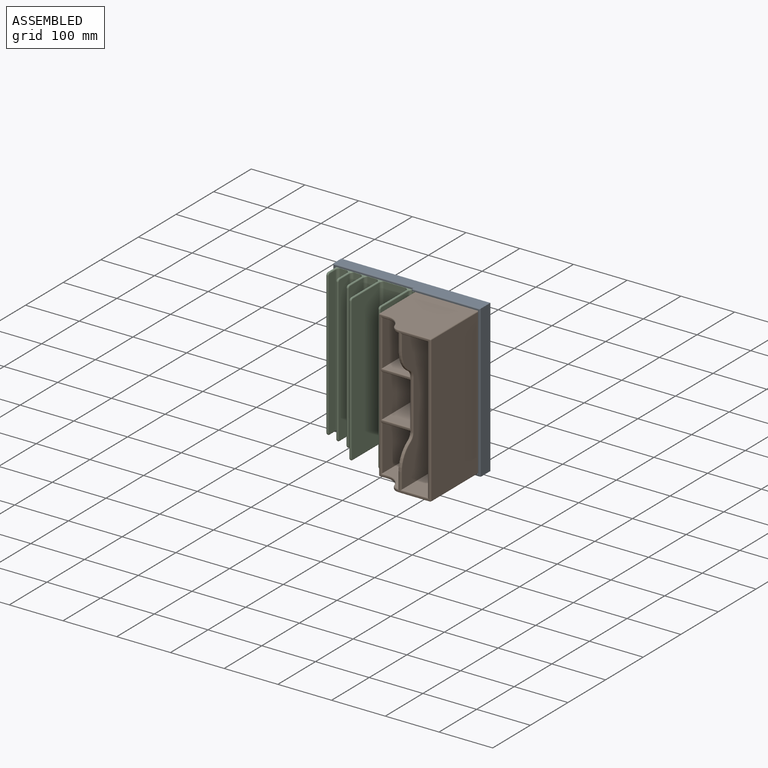
[diagram: assembled view]
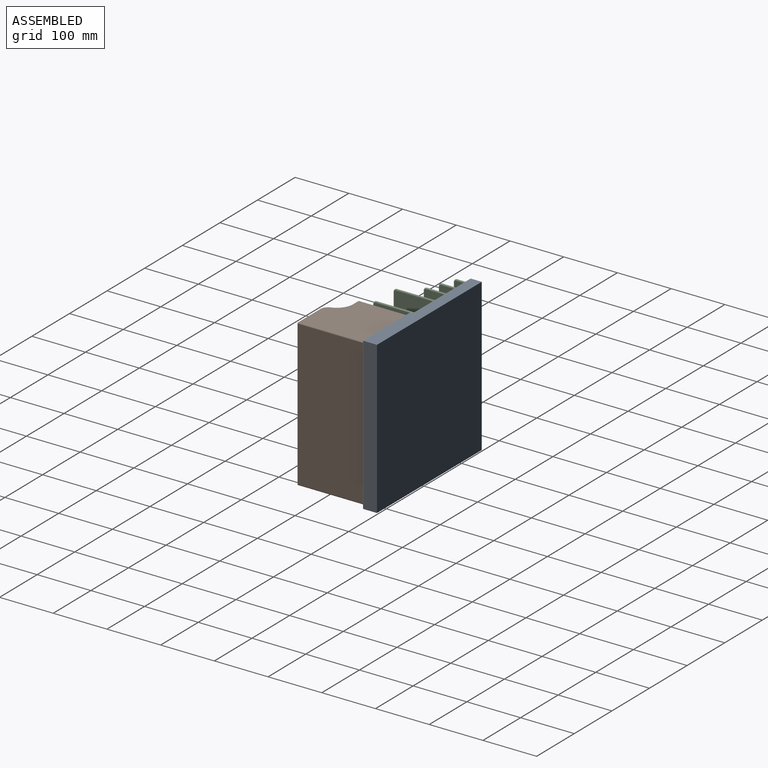
[diagram: assembled view, second angle]
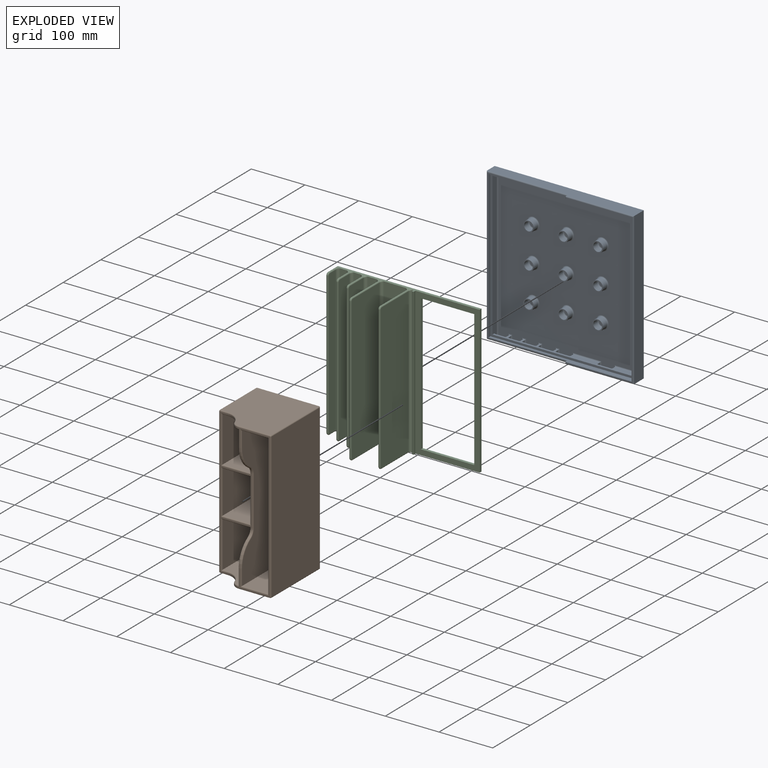
[diagram: exploded view]
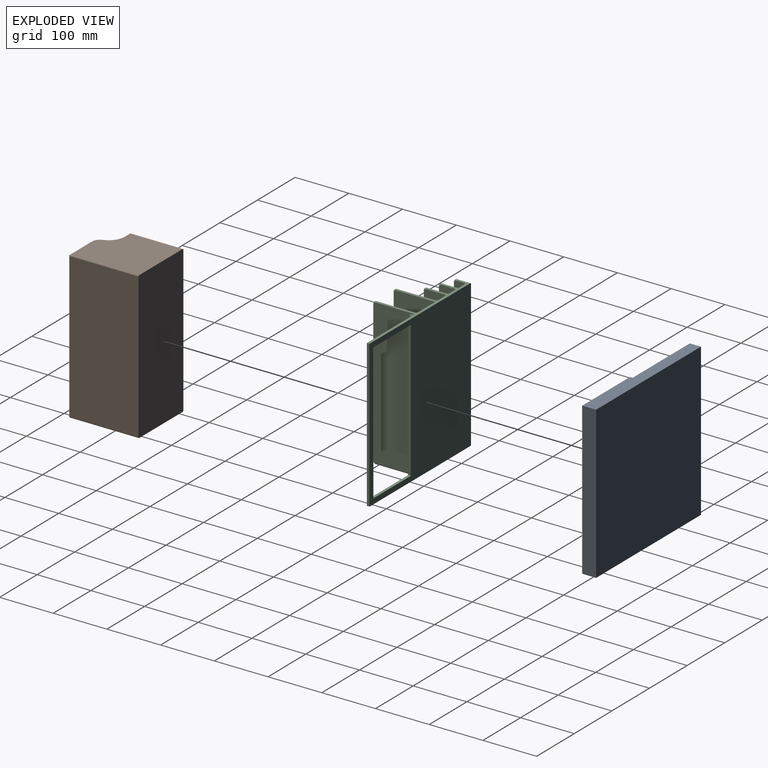
[diagram: exploded view, second angle]
ASSEMBLY  parts=3 mates=2
PART A: 134 faces, bbox 283x27x278 mm
  f0: plane 262x11mm, normal (-1,0,0), area 1815.4mm2, adj f7,f14,f15,f19,f20,f21,f22,f23
  f1: plane 279x148mm, normal (0,-1,0), area 1142mm2, adj f8,f9,f11,f16,f17,f41,f44,f46
  f2: plane 278x25mm, normal (1,0,0), area 4826mm2, adj f3,f5,f6,f12,f14,f19,f20,f21
  f3: plane 283x25mm, normal (0,0,1), area 7075mm2, adj f2,f4,f6,f40
  f4: plane 278x25mm, normal (-1,0,0), area 6190mm2, adj f3,f5,f6,f38,f39,f41
  f5: plane 283x20mm, normal (0,0,-1), area 5660mm2, adj f2,f4,f6,f44
  f6: plane 283x278mm, normal (0,1,0), area 78674mm2, adj f2,f3,f4,f5
  f7: plane 275x270mm, normal (0,-1,0), area 4296mm2, adj f0,f8,f9,f10,f11,f13,f14,f15
  f8: plane 275x5mm, normal (0,0,1), area 1375mm2, adj f1,f7,f9,f11
  f9: plane 270x10mm, normal (-1,0,0), area 1969.1mm2, adj f1,f7,f8,f10,f16,f18,f42
  f10: plane 275x10mm, normal (0,0,-1), area 2750mm2, adj f7,f9,f11,f18
  f11: plane 270x10mm, normal (1,0,0), area 1969.1mm2, adj f1,f7,f8,f10,f17,f18,f36
  f12: plane 273x258mm, normal (0,-1,0), area 65081mm2, adj f2,f48,f49,f50,f51,f52,f53,f54
  f13: plane 262x11mm, normal (1,0,0), area 2882mm2, adj f7,f14,f15,f64
  f14: plane 275x11mm, normal (0,0,1), area 2977mm2, adj f0,f2,f7,f13,f63,f79
  f15: plane 267x11mm, normal (0,0,-1), area 2937mm2, adj f0,f7,f13,f65
  f16: plane 3x2mm, normal (0,0,-1), area 6mm2, adj f1,f9,f42,f47
  f17: plane 3x2mm, normal (0,0,-1), area 6mm2, adj f1,f11,f36,f39
  f18: plane 279x124mm, normal (0,-1,0), area 1046mm2, adj f9,f10,f11,f36,f38,f40,f42,f43
  f19: plane 8x5mm, normal (0,0,-1), area 40mm2, adj f0,f2,f67,f68
  f20: plane 8x5mm, normal (0,0,1), area 40mm2, adj f0,f2,f60,f69
  f21: plane 24x8mm, normal (0,1,0), area 192mm2, adj f0,f2,f68,f69
  f22: plane 8x5mm, normal (0,0,-1), area 40mm2, adj f0,f2,f61,f70
  f23: plane 8x5mm, normal (0,0,1), area 40mm2, adj f0,f2,f57,f71
  f24: plane 24x8mm, normal (0,1,0), area 192mm2, adj f0,f2,f70,f71
  f25: plane 8x5mm, normal (0,0,-1), area 40mm2, adj f0,f2,f58,f72
  f26: plane 8x5mm, normal (0,0,1), area 40mm2, adj f0,f2,f54,f73
  f27: plane 24x8mm, normal (0,1,0), area 192mm2, adj f0,f2,f72,f73
  f28: plane 8x5mm, normal (0,0,-1), area 40mm2, adj f0,f2,f55,f74
  f29: plane 8x5mm, normal (0,0,1), area 40mm2, adj f0,f2,f51,f75
  f30: plane 21.95x8mm, normal (0,1,0), area 175.6mm2, adj f0,f2,f74,f75
  f31: plane 8x5mm, normal (0,0,-1), area 40mm2, adj f0,f2,f52,f76
  f32: plane 8x5mm, normal (0,0,1), area 40mm2, adj f0,f2,f48,f77
  f33: plane 17.95x8mm, normal (0,1,0), area 143.6mm2, adj f0,f2,f76,f77
  f34: plane 8x5mm, normal (0,0,-1), area 40mm2, adj f0,f2,f49,f78
  f35: plane 17.95x8mm, normal (0,1,0), area 143.6mm2, adj f0,f2,f78,f79
  f36: cylinder r=2mm len=2mm, axis (-1,0,0), area 6.3mm2, adj f11,f17,f18,f37
  f37: sphere r=2mm, area 6.3mm2, adj f36,f38,f39
  f38: cylinder r=2mm len=126mm, axis (0,0,-1), area 393.6mm2, adj f4,f18,f37,f40
  f39: cylinder r=2mm len=5mm, axis (0,-1,0), area 11.7mm2, adj f4,f17,f37,f41
  f40: cylinder r=2mm len=283mm, axis (-1,0,0), area 884.5mm2, adj f3,f18,f38,f43
  f41: cylinder r=2mm len=152mm, axis (0,0,-1), area 471.2mm2, adj f1,f4,f39,f44
  f42: cylinder r=2mm len=2mm, axis (-1,0,0), area 6.3mm2, adj f9,f16,f18,f45
  f43: cylinder r=2mm len=126mm, axis (0,0,1), area 393.6mm2, adj f2,f18,f40,f45
  f44: cylinder r=2mm len=283mm, axis (1,0,0), area 884.5mm2, adj f1,f5,f41,f46
  f45: sphere r=2mm, area 6.3mm2, adj f42,f43,f47
  f46: cylinder r=2mm len=152mm, axis (0,0,1), area 471.2mm2, adj f1,f2,f44,f47
  f47: cylinder r=2mm len=5mm, axis (0,1,0), area 11.7mm2, adj f2,f16,f45,f46
  f48: cylinder r=2mm len=10mm, axis (1,0,0), area 27.4mm2, adj f2,f12,f32,f50
  f49: cylinder r=2mm len=10mm, axis (-1,0,0), area 27.4mm2, adj f2,f12,f34,f50
  f50: cylinder r=2mm len=8mm, axis (0,0,-1), area 17.1mm2, adj f0,f12,f48,f49
  f51: cylinder r=2mm len=10mm, axis (1,0,0), area 27.4mm2, adj f2,f12,f29,f53
  f52: cylinder r=2mm len=10mm, axis (-1,0,0), area 27.4mm2, adj f2,f12,f31,f53
  f53: cylinder r=2mm len=8mm, axis (0,0,-1), area 17.1mm2, adj f0,f12,f51,f52
  f54: cylinder r=2mm len=10mm, axis (1,0,0), area 27.4mm2, adj f2,f12,f26,f56
  f55: cylinder r=2mm len=10mm, axis (-1,0,0), area 27.4mm2, adj f2,f12,f28,f56
  f56: cylinder r=2mm len=8mm, axis (0,0,-1), area 17.1mm2, adj f0,f12,f54,f55
  f57: cylinder r=2mm len=10mm, axis (1,0,0), area 27.4mm2, adj f2,f12,f23,f59
  f58: cylinder r=2mm len=10mm, axis (-1,0,0), area 27.4mm2, adj f2,f12,f25,f59
  f59: cylinder r=2mm len=8.15mm, axis (0,0,-1), area 17.6mm2, adj f0,f12,f57,f58
  f60: cylinder r=2mm len=10mm, axis (1,0,0), area 27.4mm2, adj f2,f12,f20,f62
  f61: cylinder r=2mm len=10mm, axis (-1,0,0), area 27.4mm2, adj f2,f12,f22,f62
  f62: cylinder r=2mm len=54mm, axis (0,0,-1), area 161.6mm2, adj f0,f12,f60,f61
  f63: cylinder r=2mm len=275mm, axis (-1,0,0), area 861.7mm2, adj f2,f12,f14,f64
  f64: cylinder r=2mm len=262mm, axis (0,0,1), area 818.5mm2, adj f12,f13,f63,f65
  f65: cylinder r=2mm len=267mm, axis (1,0,0), area 834.2mm2, adj f12,f15,f64,f66
  f66: cylinder r=2mm len=44mm, axis (0,0,-1), area 131.9mm2, adj f0,f12,f65,f67
  f67: cylinder r=2mm len=10mm, axis (-1,0,0), area 27.4mm2, adj f2,f12,f19,f66
  f68: cylinder r=2mm len=8mm, axis (1,0,0), area 25.1mm2, adj f0,f2,f19,f21
  f69: cylinder r=2mm len=8mm, axis (-1,0,0), area 25.1mm2, adj f0,f2,f20,f21
  f70: cylinder r=2mm len=8mm, axis (1,0,0), area 25.1mm2, adj f0,f2,f22,f24
  f71: cylinder r=2mm len=8mm, axis (-1,0,0), area 25.1mm2, adj f0,f2,f23,f24
  f72: cylinder r=2mm len=8mm, axis (1,0,0), area 25.1mm2, adj f0,f2,f25,f27
  f73: cylinder r=2mm len=8mm, axis (-1,0,0), area 25.1mm2, adj f0,f2,f26,f27
  f74: cylinder r=2mm len=8mm, axis (1,0,0), area 25.1mm2, adj f0,f2,f28,f30
  f75: cylinder r=2mm len=8mm, axis (-1,0,0), area 25.1mm2, adj f0,f2,f29,f30
  f76: cylinder r=2mm len=8mm, axis (1,0,0), area 25.1mm2, adj f0,f2,f31,f33
  f77: cylinder r=2mm len=8mm, axis (-1,0,0), area 25.1mm2, adj f0,f2,f32,f33
  f78: cylinder r=2mm len=8mm, axis (1,0,0), area 25.1mm2, adj f0,f2,f34,f35
  f79: cylinder r=2mm len=8mm, axis (1,0,0), area 25.1mm2, adj f0,f2,f14,f35
  f80: cylinder r=8mm len=16mm, axis (0,1,0), area 527.8mm2, adj f82,f133
  f81: cylinder r=10mm len=20mm, axis (0,1,0), area 659.7mm2, adj f82,f124
  f82: plane 20x20mm, normal (0,-1,0), area 113.1mm2, adj f80,f81
  f83: plane 12x12mm, normal (0,-1,0), area 113.1mm2, adj f133
  f84: cylinder r=8mm len=16mm, axis (0,1,0), area 527.8mm2, adj f86,f132
  f85: cylinder r=10mm len=20mm, axis (0,1,0), area 659.7mm2, adj f86,f123
  f86: plane 20x20mm, normal (0,-1,0), area 113.1mm2, adj f84,f85
  f87: plane 12x12mm, normal (0,-1,0), area 113.1mm2, adj f132
  f88: cylinder r=8mm len=16mm, axis (0,1,0), area 527.8mm2, adj f90,f131
  f89: cylinder r=10mm len=20mm, axis (0,1,0), area 659.7mm2, adj f90,f122
  f90: plane 20x20mm, normal (0,-1,0), area 113.1mm2, adj f88,f89
  f91: plane 12x12mm, normal (0,-1,0), area 113.1mm2, adj f131
  f92: cylinder r=8mm len=16mm, axis (0,1,0), area 527.8mm2, adj f94,f130
  f93: cylinder r=10mm len=20mm, axis (0,1,0), area 659.7mm2, adj f94,f121
  f94: plane 20x20mm, normal (0,-1,0), area 113.1mm2, adj f92,f93
  f95: plane 12x12mm, normal (0,-1,0), area 113.1mm2, adj f130
  f96: cylinder r=8mm len=16mm, axis (0,1,0), area 527.8mm2, adj f98,f129
  f97: cylinder r=10mm len=20mm, axis (0,1,0), area 659.7mm2, adj f98,f120
  f98: plane 20x20mm, normal (0,-1,0), area 113.1mm2, adj f96,f97
  f99: plane 12x12mm, normal (0,-1,0), area 113.1mm2, adj f129
  f100: cylinder r=8mm len=16mm, axis (0,1,0), area 527.8mm2, adj f102,f128
  f101: cylinder r=10mm len=20mm, axis (0,1,0), area 659.7mm2, adj f102,f119
  f102: plane 20x20mm, normal (0,-1,0), area 113.1mm2, adj f100,f101
  f103: plane 12x12mm, normal (0,-1,0), area 113.1mm2, adj f128
  f104: cylinder r=8mm len=16mm, axis (0,1,0), area 527.8mm2, adj f106,f127
  f105: cylinder r=10mm len=20mm, axis (0,1,0), area 659.7mm2, adj f106,f118
  f106: plane 20x20mm, normal (0,-1,0), area 113.1mm2, adj f104,f105
  f107: plane 12x12mm, normal (0,-1,0), area 113.1mm2, adj f127
  f108: cylinder r=8mm len=16mm, axis (0,1,0), area 527.8mm2, adj f110,f126
  f109: cylinder r=10mm len=20mm, axis (0,1,0), area 659.7mm2, adj f110,f117
  f110: plane 20x20mm, normal (0,-1,0), area 113.1mm2, adj f108,f109
  f111: plane 12x12mm, normal (0,-1,0), area 113.1mm2, adj f126
  f112: cylinder r=8mm len=16mm, axis (0,1,0), area 527.8mm2, adj f114,f125
  f113: cylinder r=10mm len=20mm, axis (0,1,0), area 659.7mm2, adj f114,f116
  f114: plane 20x20mm, normal (0,-1,0), area 113.1mm2, adj f112,f113
  f115: plane 12x12mm, normal (0,-1,0), area 113.1mm2, adj f125
  f116: torus R=12mm, axis (0,1,0), area 211.7mm2, adj f12,f113
  f117: torus R=12mm, axis (0,1,0), area 211.7mm2, adj f12,f109
  f118: torus R=12mm, axis (0,1,0), area 211.7mm2, adj f12,f105
  f119: torus R=12mm, axis (0,1,0), area 211.7mm2, adj f12,f101
  f120: torus R=12mm, axis (0,1,0), area 211.7mm2, adj f12,f97
  f121: torus R=12mm, axis (0,1,0), area 211.7mm2, adj f12,f93
  f122: torus R=12mm, axis (0,1,0), area 211.7mm2, adj f12,f89
  f123: torus R=12mm, axis (0,1,0), area 211.7mm2, adj f12,f85
  f124: torus R=12mm, axis (0,1,0), area 211.7mm2, adj f12,f81
  f125: torus R=6mm, axis (0,1,0), area 143.6mm2, adj f112,f115
  f126: torus R=6mm, axis (0,1,0), area 143.6mm2, adj f108,f111
  f127: torus R=6mm, axis (0,1,0), area 143.6mm2, adj f104,f107
  f128: torus R=6mm, axis (0,1,0), area 143.6mm2, adj f100,f103
  f129: torus R=6mm, axis (0,1,0), area 143.6mm2, adj f96,f99
  f130: torus R=6mm, axis (0,1,0), area 143.6mm2, adj f92,f95
  f131: torus R=6mm, axis (0,1,0), area 143.6mm2, adj f88,f91
  f132: torus R=6mm, axis (0,1,0), area 143.6mm2, adj f84,f87
  f133: torus R=6mm, axis (0,1,0), area 143.6mm2, adj f80,f83
PART B: 87 faces, bbox 274x119x134.1 mm
  f0: plane 122x85mm, normal (0,-1,0), area 9680.6mm2, adj f12,f13,f25,f48,f50,f52
  f1: plane 270x60mm, normal (0,0,1), area 992.9mm2, adj f27,f28,f33,f34,f37,f39,f41,f43
  f2: plane 270x59mm, normal (0,0,1), area 894.4mm2, adj f29,f30,f31,f32,f38,f40,f52,f54
  f3: plane 122x85mm, normal (0,-1,0), area 9680.6mm2, adj f8,f9,f23,f40,f42,f44
  f4: plane 262x122mm, normal (0,1,0), area 27733.3mm2, adj f14,f16,f24,f73,f74,f76,f78,f80
  f5: plane 91x80mm, normal (0,-1,0), area 7280mm2, adj f10,f11,f26,f86
  f6: plane 128x115mm, normal (1,0,0), area 13516.9mm2, adj f22,f55,f56,f57,f58,f59,f60
  f7: plane 128x115mm, normal (-1,0,0), area 13516.9mm2, adj f22,f63,f66,f69,f70,f71,f72
  f8: plane 91x52mm, normal (1,0,0), area 4732mm2, adj f3,f19,f23,f41
  f9: plane 122x52mm, normal (-1,0,0), area 5264.9mm2, adj f3,f19,f23,f35,f36,f37
  f10: plane 91x52mm, normal (1,0,0), area 4732mm2, adj f5,f17,f26,f85
  f11: plane 91x52mm, normal (-1,0,0), area 4732mm2, adj f5,f17,f26,f84
  f12: plane 122x52mm, normal (1,0,0), area 5264.9mm2, adj f0,f18,f25,f49,f51,f53
  f13: plane 91x52mm, normal (-1,0,0), area 4732mm2, adj f0,f18,f25,f45
  f14: plane 122x49mm, normal (1,0,0), area 5978mm2, adj f4,f15,f24,f75
  f15: plane 262x122mm, normal (0,-1,0), area 31964mm2, adj f14,f16,f24,f77
  f16: plane 122x49mm, normal (-1,0,0), area 5978mm2, adj f4,f15,f24,f79
  f17: plane 91x80mm, normal (0,1,0), area 7280mm2, adj f10,f11,f26,f83
  f18: plane 91x85mm, normal (0,1,0), area 7735mm2, adj f12,f13,f25,f47
  f19: plane 91x85mm, normal (0,1,0), area 7735mm2, adj f8,f9,f23,f39
  f20: plane 270x128mm, normal (0,1,0), area 34560mm2, adj f22,f57,f63,f64
  f21: plane 270x97mm, normal (0,-1,0), area 26190mm2, adj f22,f60,f65,f66
  f22: plane 274x119mm, normal (0,0,-1), area 32602.6mm2, adj f6,f7,f20,f21,f57,f60,f63,f66
  f23: plane 85x52mm, normal (0,0,1), area 4420mm2, adj f3,f8,f9,f19
  f24: plane 262x49mm, normal (0,0,1), area 12838mm2, adj f4,f14,f15,f16
  f25: plane 85x52mm, normal (0,0,1), area 4420mm2, adj f0,f12,f13,f18
  f26: plane 80x52mm, normal (0,0,1), area 4160mm2, adj f5,f10,f11,f17
  f27: cylinder r=15mm len=12.78mm, axis (0,-1,0), area 30.6mm2, adj f1,f29,f44,f80
  f28: cylinder r=15mm len=12.78mm, axis (0,1,0), area 30.6mm2, adj f1,f30,f48,f76
  f29: cylinder r=50mm len=42.61mm, axis (0,-1,0), area 102mm2, adj f2,f27,f42,f82
  f30: cylinder r=50mm len=42.61mm, axis (0,1,0), area 102mm2, adj f2,f28,f50,f74
  f31: cylinder r=15mm len=14.26mm, axis (1,0,0), area 37.6mm2, adj f2,f33,f36,f55
  f32: cylinder r=15mm len=14.26mm, axis (1,0,0), area 37.6mm2, adj f2,f34,f53,f71
  f33: cylinder r=30mm len=28.51mm, axis (1,0,0), area 75.3mm2, adj f1,f31,f35,f56
  f34: cylinder r=30mm len=28.51mm, axis (1,0,0), area 75.3mm2, adj f1,f32,f51,f72
  f35: torus R=32mm, axis (1,0,0), area 121.1mm2, adj f9,f33,f36,f37
  f36: torus R=13mm, axis (1,0,0), area 56.2mm2, adj f9,f31,f35,f38
  f37: cylinder r=2mm len=11.23mm, axis (0,1,0), area 31.3mm2, adj f1,f9,f35,f39
  f38: cylinder r=2mm len=2mm, axis (0,-1,0), area 2.3mm2, adj f2,f36,f40
  f39: cylinder r=2mm len=89mm, axis (1,0,0), area 271.6mm2, adj f1,f19,f37,f41
  f40: cylinder r=2mm len=31.6mm, axis (-1,0,0), area 95.3mm2, adj f2,f3,f38,f42
  f41: cylinder r=2mm len=56mm, axis (0,-1,0), area 167.9mm2, adj f1,f8,f39,f43
  f42: torus R=48mm, axis (0,1,0), area 157.9mm2, adj f3,f29,f40,f44
  f43: cylinder r=2mm len=2mm, axis (-1,0,0), area 2.3mm2, adj f1,f41,f44
  f44: torus R=17mm, axis (0,1,0), area 50.4mm2, adj f3,f27,f42,f43
  f45: cylinder r=2mm len=56mm, axis (0,1,0), area 167.9mm2, adj f1,f13,f46,f47
  f46: cylinder r=2mm len=2mm, axis (-1,0,0), area 2.3mm2, adj f1,f45,f48
  f47: cylinder r=2mm len=89mm, axis (1,0,0), area 271.6mm2, adj f1,f18,f45,f49
  f48: torus R=17mm, axis (0,1,0), area 50.4mm2, adj f0,f28,f46,f50
  f49: cylinder r=2mm len=11.23mm, axis (0,-1,0), area 31.3mm2, adj f1,f12,f47,f51
  f50: torus R=48mm, axis (0,1,0), area 157.9mm2, adj f0,f30,f48,f52
  f51: torus R=32mm, axis (1,0,0), area 121.1mm2, adj f12,f34,f49,f53
  f52: cylinder r=2mm len=31.6mm, axis (-1,0,0), area 95.3mm2, adj f0,f2,f50,f54
  f53: torus R=13mm, axis (1,0,0), area 56.2mm2, adj f12,f32,f51,f54
  f54: cylinder r=2mm len=2mm, axis (0,-1,0), area 2.3mm2, adj f2,f52,f53
  f55: torus R=13mm, axis (1,0,0), area 56.2mm2, adj f6,f31,f56,f58
  f56: torus R=32mm, axis (1,0,0), area 121.1mm2, adj f6,f33,f55,f59
  f57: cylinder r=2mm len=128mm, axis (0,0,1), area 402.1mm2, adj f6,f20,f22,f61
  f58: cylinder r=2mm len=59mm, axis (0,-1,0), area 185.4mm2, adj f2,f6,f55,f61
  f59: cylinder r=2mm len=13.23mm, axis (0,1,0), area 41.6mm2, adj f1,f6,f56,f62
  f60: cylinder r=2mm len=97mm, axis (0,0,-1), area 304.7mm2, adj f6,f21,f22,f62
  f61: sphere r=2mm, area 6.3mm2, adj f57,f58,f64
  f62: sphere r=2mm, area 6.3mm2, adj f59,f60,f65
  f63: cylinder r=2mm len=128mm, axis (0,0,-1), area 402.1mm2, adj f7,f20,f22,f67
  f64: cylinder r=2mm len=270mm, axis (1,0,0), area 848.2mm2, adj f2,f20,f61,f67
  f65: cylinder r=2mm len=270mm, axis (-1,0,0), area 848.2mm2, adj f1,f21,f62,f68
  f66: cylinder r=2mm len=97mm, axis (0,0,1), area 304.7mm2, adj f7,f21,f22,f68
  f67: sphere r=2mm, area 6.3mm2, adj f63,f64,f69
  f68: sphere r=2mm, area 6.3mm2, adj f65,f66,f70
  f69: cylinder r=2mm len=59mm, axis (0,1,0), area 185.4mm2, adj f2,f7,f67,f71
  f70: cylinder r=2mm len=13.23mm, axis (0,-1,0), area 41.6mm2, adj f1,f7,f68,f72
  f71: torus R=13mm, axis (1,0,0), area 56.2mm2, adj f7,f32,f69,f72
  f72: torus R=32mm, axis (1,0,0), area 121.1mm2, adj f7,f34,f70,f71
  f73: cylinder r=2mm len=31.6mm, axis (1,0,0), area 95.3mm2, adj f2,f4,f74,f75
  f74: torus R=48mm, axis (0,1,0), area 157.9mm2, adj f4,f30,f73,f76
  f75: cylinder r=2mm len=53mm, axis (0,-1,0), area 158.5mm2, adj f2,f14,f73,f77
  f76: torus R=17mm, axis (0,1,0), area 50.4mm2, adj f4,f28,f74,f78
  f77: cylinder r=2mm len=266mm, axis (-1,0,0), area 827.7mm2, adj f2,f15,f75,f79
  f78: cylinder r=2mm len=92mm, axis (-1,0,0), area 289mm2, adj f1,f4,f76,f80
  f79: cylinder r=2mm len=53mm, axis (0,1,0), area 158.5mm2, adj f2,f16,f77,f81
  f80: torus R=17mm, axis (0,1,0), area 50.4mm2, adj f4,f27,f78,f82
  f81: cylinder r=2mm len=31.6mm, axis (1,0,0), area 95.3mm2, adj f2,f4,f79,f82
  f82: torus R=48mm, axis (0,1,0), area 157.9mm2, adj f4,f29,f80,f81
  f83: cylinder r=2mm len=84mm, axis (1,0,0), area 255.9mm2, adj f1,f17,f84,f85
  f84: cylinder r=2mm len=56mm, axis (0,1,0), area 167.9mm2, adj f1,f11,f83,f86
  f85: cylinder r=2mm len=56mm, axis (0,-1,0), area 167.9mm2, adj f1,f10,f83,f86
  f86: cylinder r=2mm len=84mm, axis (-1,0,0), area 255.9mm2, adj f1,f5,f84,f85
PART C: 112 faces, bbox 294.8x271x87.4 mm
  f0: plane 274x269mm, normal (0,0,1), area 48431.3mm2, adj f23,f24,f25,f26,f59,f63,f108,f109
  f1: plane 274x119.5mm, normal (0,0,-1), area 7470mm2, adj f23,f25,f26,f27,f108,f109,f110,f111
  f2: bspline ~3.72x3.09mm, area 1.9mm2, adj f23,f39,f102
  f3: bspline ~3.72x3.09mm, area 1.9mm2, adj f25,f43,f106
  f4: bspline ~3.72x3.09mm, area 1.9mm2, adj f23,f44,f97
  f5: bspline ~3.72x3.09mm, area 1.9mm2, adj f25,f48,f101
  f6: bspline ~3.72x3.09mm, area 1.9mm2, adj f23,f49,f92
  f7: bspline ~3.72x3.09mm, area 1.9mm2, adj f25,f53,f96
  f8: bspline ~3.72x3.09mm, area 1.9mm2, adj f23,f54,f87
  f9: bspline ~3.72x3.09mm, area 1.9mm2, adj f25,f58,f91
  f10: bspline ~3.72x3.09mm, area 1.9mm2, adj f23,f39,f80
  f11: bspline ~3.72x3.09mm, area 1.9mm2, adj f25,f43,f79
  f12: bspline ~3.72x3.09mm, area 1.9mm2, adj f23,f44,f75
  f13: bspline ~3.72x3.09mm, area 1.9mm2, adj f25,f48,f74
  f14: bspline ~3.72x3.09mm, area 1.9mm2, adj f23,f49,f70
  f15: bspline ~3.72x3.09mm, area 1.9mm2, adj f25,f53,f69
  f16: bspline ~3.72x3.09mm, area 1.9mm2, adj f23,f54,f65
  f17: bspline ~3.72x3.09mm, area 1.9mm2, adj f25,f58,f64
  f18: plane 274x16.53mm, normal (0,0,-1), area 4371.1mm2, adj f23,f25,f71,f72,f73,f98,f99,f100
  f19: plane 274x40.58mm, normal (0,0,-1), area 10960.8mm2, adj f23,f25,f66,f67,f68,f93,f94,f95
  f20: plane 274x12.53mm, normal (0,0,-1), area 3275.1mm2, adj f23,f25,f76,f77,f78,f103,f104,f105
  f21: plane 274x12.18mm, normal (0,0,-1), area 3179.2mm2, adj f23,f25,f81,f82,f83,f84,f85,f86
  f22: plane 274x1.29mm, normal (0,0,-1), area 274.4mm2, adj f23,f25,f28,f88,f89,f90
  f23: plane 268.98x11.98mm, normal (1,0,0), area 1364.6mm2, adj f0,f1,f2,f4,f6,f8,f10,f12
  f24: plane 270x28mm, normal (0,1,0), area 7556.1mm2, adj f0,f59,f60,f61,f62,f63
  f25: plane 268.98x11.98mm, normal (-1,0,0), area 1364.6mm2, adj f0,f1,f3,f5,f7,f9,f11,f13
  f26: plane 274x5mm, normal (0,-1,0), area 1370mm2, adj f0,f1,f23,f25
  f27: plane 274x5mm, normal (0,-1,0), area 1370mm2, adj f1,f23,f25,f29
  f28: plane 274x3mm, normal (0,1,0), area 822mm2, adj f22,f23,f25,f107
  f29: plane 274x2mm, normal (0,0,-1), area 548mm2, adj f23,f25,f27,f107
  f30: plane 270x28mm, normal (0,1,0), area 7556.1mm2, adj f39,f40,f41,f42,f43,f83
  f31: plane 270x28mm, normal (0,-1,0), area 7556.1mm2, adj f39,f40,f41,f42,f43,f104
  f32: plane 270x38mm, normal (0,1,0), area 10256.1mm2, adj f44,f45,f46,f47,f48,f78
  f33: plane 270x38mm, normal (0,-1,0), area 10256.1mm2, adj f44,f45,f46,f47,f48,f99
  f34: plane 270x73mm, normal (0,1,0), area 19706.1mm2, adj f54,f55,f56,f57,f58,f68
  f35: plane 270x73mm, normal (0,-1,0), area 19706.1mm2, adj f54,f55,f56,f57,f58,f89
  f36: plane 270x73mm, normal (0,1,0), area 19706.1mm2, adj f49,f50,f51,f52,f53,f73
  f37: plane 270x73mm, normal (0,-1,0), area 19706.1mm2, adj f49,f50,f51,f52,f53,f94
  f38: plane 270x18mm, normal (0,-1,0), area 4856.1mm2, adj f59,f60,f61,f62,f63,f85
  f39: cylinder r=2mm len=30mm, axis (0,0,-1), area 166.7mm2, adj f2,f10,f30,f31,f40,f80,f82,f102
  f40: torus R=3mm, axis (0,-1,0), area 42.2mm2, adj f30,f31,f39,f41
  f41: cylinder r=2mm len=264mm, axis (-1,0,0), area 1658.8mm2, adj f30,f31,f40,f42
  f42: torus R=3mm, axis (0,-1,0), area 42.2mm2, adj f30,f31,f41,f43
  f43: cylinder r=2mm len=30mm, axis (0,0,1), area 166.7mm2, adj f3,f11,f30,f31,f42,f79,f81,f105
  f44: cylinder r=2mm len=40mm, axis (0,0,-1), area 229.5mm2, adj f4,f12,f32,f33,f45,f75,f77,f97
  f45: torus R=3mm, axis (0,-1,0), area 42.2mm2, adj f32,f33,f44,f46
  f46: cylinder r=2mm len=264mm, axis (-1,0,0), area 1658.8mm2, adj f32,f33,f45,f47
  f47: torus R=3mm, axis (0,-1,0), area 42.2mm2, adj f32,f33,f46,f48
  f48: cylinder r=2mm len=40mm, axis (0,0,1), area 229.5mm2, adj f5,f13,f32,f33,f47,f74,f76,f100
  f49: cylinder r=2mm len=75mm, axis (0,0,-1), area 449.4mm2, adj f6,f14,f36,f37,f50,f70,f72,f92
  f50: torus R=3mm, axis (0,-1,0), area 42.2mm2, adj f36,f37,f49,f51
  f51: cylinder r=2mm len=264mm, axis (-1,0,0), area 1658.8mm2, adj f36,f37,f50,f52
  f52: torus R=3mm, axis (0,-1,0), area 42.2mm2, adj f36,f37,f51,f53
  f53: cylinder r=2mm len=75mm, axis (0,0,1), area 449.4mm2, adj f7,f15,f36,f37,f52,f69,f71,f95
  f54: cylinder r=2mm len=75mm, axis (0,0,-1), area 449.4mm2, adj f8,f16,f34,f35,f55,f65,f67,f87
  f55: torus R=3mm, axis (0,-1,0), area 42.2mm2, adj f34,f35,f54,f56
  f56: cylinder r=2mm len=264mm, axis (-1,0,0), area 1658.8mm2, adj f34,f35,f55,f57
  f57: torus R=3mm, axis (0,-1,0), area 42.2mm2, adj f34,f35,f56,f58
  f58: cylinder r=2mm len=75mm, axis (0,0,1), area 449.4mm2, adj f9,f17,f34,f35,f57,f64,f66,f90
  f59: cylinder r=2mm len=25mm, axis (0,0,-1), area 125.7mm2, adj f0,f24,f25,f38,f60,f86
  f60: torus R=3mm, axis (0,-1,0), area 42.2mm2, adj f24,f38,f59,f61
  f61: cylinder r=2mm len=264mm, axis (1,0,0), area 1658.8mm2, adj f24,f38,f60,f62
  f62: torus R=3mm, axis (0,-1,0), area 42.2mm2, adj f24,f38,f61,f63
  f63: cylinder r=2mm len=25mm, axis (0,0,1), area 125.7mm2, adj f0,f23,f24,f38,f62,f84
  f64: bspline ~5.95x5mm, area 10mm2, adj f17,f25,f58,f66
  f65: bspline ~5.95x5mm, area 10mm2, adj f16,f23,f54,f67
  f66: torus R=7mm, axis (0,0,1), area 8.7mm2, adj f19,f58,f64,f68
  f67: torus R=7mm, axis (0,0,1), area 8.7mm2, adj f19,f54,f65,f68
  f68: cylinder r=5mm len=270mm, axis (-1,0,0), area 2120.6mm2, adj f19,f34,f66,f67
  f69: bspline ~5.95x5mm, area 10mm2, adj f15,f25,f53,f71
  f70: bspline ~5.95x5mm, area 10mm2, adj f14,f23,f49,f72
  f71: torus R=7mm, axis (0,0,1), area 8.7mm2, adj f18,f53,f69,f73
  f72: torus R=7mm, axis (0,0,1), area 8.7mm2, adj f18,f49,f70,f73
  f73: cylinder r=5mm len=270mm, axis (-1,0,0), area 2120.6mm2, adj f18,f36,f71,f72
  f74: bspline ~5.95x5mm, area 10mm2, adj f13,f25,f48,f76
  f75: bspline ~5.95x5mm, area 10mm2, adj f12,f23,f44,f77
  f76: torus R=7mm, axis (0,0,1), area 8.7mm2, adj f20,f48,f74,f78
  f77: torus R=7mm, axis (0,0,1), area 8.7mm2, adj f20,f44,f75,f78
  f78: cylinder r=5mm len=270mm, axis (-1,0,0), area 2120.6mm2, adj f20,f32,f76,f77
  f79: bspline ~5.95x5mm, area 10mm2, adj f11,f25,f43,f81
  f80: bspline ~5.95x5mm, area 10mm2, adj f10,f23,f39,f82
  f81: torus R=7mm, axis (0,0,1), area 8.7mm2, adj f21,f43,f79,f83
  f82: torus R=7mm, axis (0,0,1), area 8.7mm2, adj f21,f39,f80,f83
  f83: cylinder r=5mm len=270mm, axis (-1,0,0), area 2120.6mm2, adj f21,f30,f81,f82
  f84: torus R=7mm, axis (0,0,1), area 17.8mm2, adj f21,f23,f63,f85
  f85: cylinder r=5mm len=270mm, axis (1,0,0), area 2120.6mm2, adj f21,f38,f84,f86
  f86: torus R=7mm, axis (0,0,1), area 17.8mm2, adj f21,f25,f59,f85
  f87: bspline ~5.95x5mm, area 10mm2, adj f8,f23,f54,f88
  f88: torus R=7mm, axis (0,0,1), area 8.7mm2, adj f22,f54,f87,f89
  f89: cylinder r=5mm len=270mm, axis (1,0,0), area 2120.6mm2, adj f22,f35,f88,f90
  f90: torus R=7mm, axis (0,0,1), area 8.7mm2, adj f22,f58,f89,f91
  f91: bspline ~5.95x5mm, area 10mm2, adj f9,f25,f58,f90
  f92: bspline ~5.95x5mm, area 10mm2, adj f6,f23,f49,f93
  f93: torus R=7mm, axis (0,0,1), area 8.7mm2, adj f19,f49,f92,f94
  f94: cylinder r=5mm len=270mm, axis (1,0,0), area 2120.6mm2, adj f19,f37,f93,f95
  f95: torus R=7mm, axis (0,0,1), area 8.7mm2, adj f19,f53,f94,f96
  f96: bspline ~5.95x5mm, area 10mm2, adj f7,f25,f53,f95
  f97: bspline ~5.95x5mm, area 10mm2, adj f4,f23,f44,f98
  f98: torus R=7mm, axis (0,0,1), area 8.7mm2, adj f18,f44,f97,f99
  f99: cylinder r=5mm len=270mm, axis (1,0,0), area 2120.6mm2, adj f18,f33,f98,f100
  f100: torus R=7mm, axis (0,0,1), area 8.7mm2, adj f18,f48,f99,f101
  f101: bspline ~5.95x5mm, area 10mm2, adj f5,f25,f48,f100
  f102: bspline ~5.95x5mm, area 10mm2, adj f2,f23,f39,f103
  f103: torus R=7mm, axis (0,0,1), area 8.7mm2, adj f20,f39,f102,f104
  f104: cylinder r=5mm len=270mm, axis (1,0,0), area 2120.6mm2, adj f20,f31,f103,f105
  f105: torus R=7mm, axis (0,0,1), area 8.7mm2, adj f20,f43,f104,f106
  f106: bspline ~5.95x5mm, area 10mm2, adj f3,f25,f43,f105
  f107: cylinder r=2mm len=274mm, axis (-1,0,0), area 860.8mm2, adj f23,f25,f28,f29
  f108: plane 99.5x5mm, normal (-1,0,0), area 497.5mm2, adj f0,f1,f109,f111
  f109: plane 254x5mm, normal (0,1,0), area 1270mm2, adj f0,f1,f108,f110
  f110: plane 99.5x5mm, normal (1,0,0), area 497.5mm2, adj f0,f1,f109,f111
  f111: plane 254x5mm, normal (0,-1,0), area 1270mm2, adj f0,f1,f108,f110
PLACE A rot(axis=(0,1,0),90deg) t=(-7.12,-16.73,1.71)mm
PLACE B rot(axis=(0.58,0.58,-0.58),120.1deg) t=(68.15,-16.87,1.58)mm
PLACE C rot(axis=(-0.58,0.58,0.58),119.9deg) t=(-7.12,-16.73,1.71)mm
MATE fastened C.f0 <-> A.f96  axis (0,1,0) through (-7.11,-11.73,1.71)mm
MATE parallel B.f22 <-> C.f1  axis (0,1,0) through (68.15,-16.87,1.58)mm
